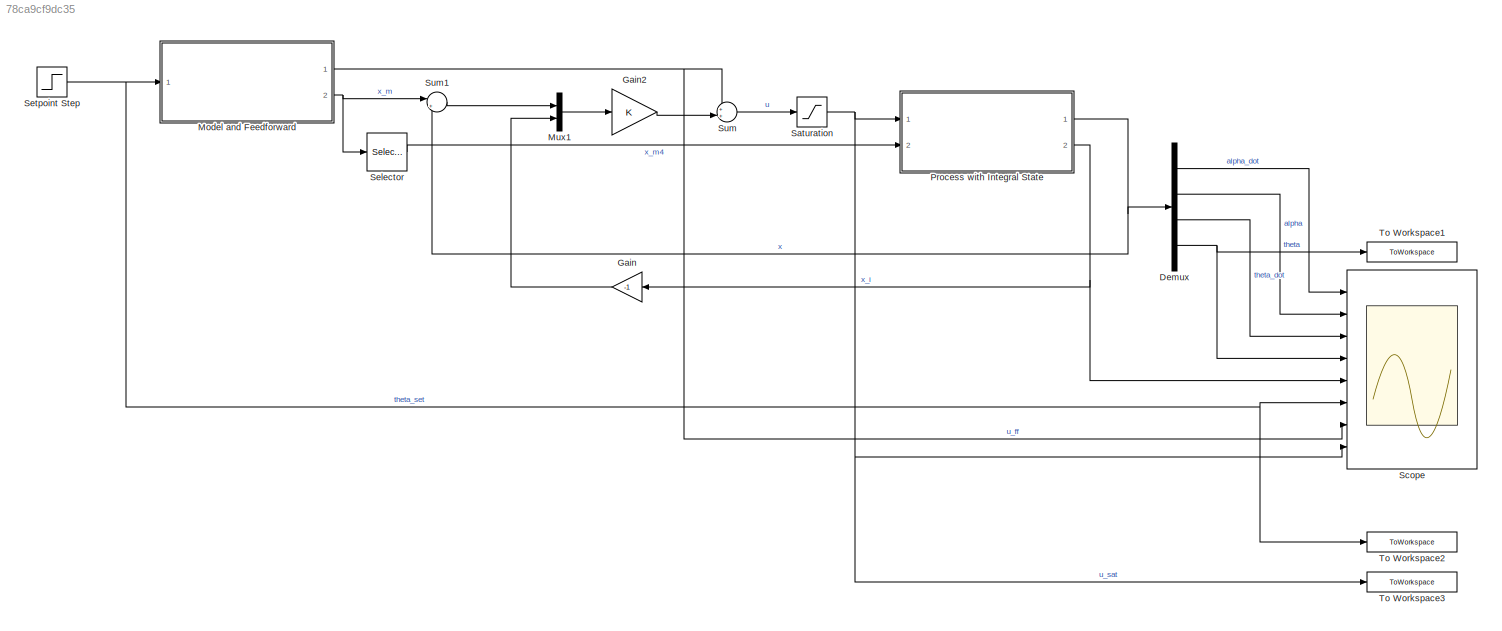
MODEL slx_78ca9cf9dc35
KIND model
CONFIG AbsTol = auto
CONFIG FixedStep = h
CONFIG MaxStep = auto
CONFIG MinStep = auto
CONFIG RelTol = 1e-3
CONFIG SampleTimeConstraint = Unconstrained
CONFIG Solver = ode14x
CONFIG SolverMode = SingleTasking
CONFIG SolverName = ode14x
CONFIG StartTime = 0.0
CONFIG StopTime = sim_time_sec
BLOCK [Demux] Demux
  Ports = [1, 4]
BLOCK [Gain] Gain
  Gain = -1
BLOCK [Gain] Gain2
  Gain = K
  Multiplication = Matrix(K*u)
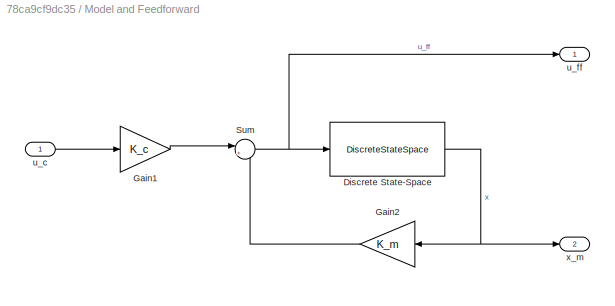
BLOCK [SubSystem] Model and Feedforward
  Ports = [1, 2]
BLOCK [DiscreteStateSpace] Model and Feedforward/Discrete State-Space
  A = Phi
  B = Gamma
  C = eye(size(Phi))
  D = zeros(size(Phi, 1), 1)
  SampleTime = -1
  StateIdentifier = {'alpha_dot', 'alpha', 'theta_dot', 'theta', 'x_i'}
BLOCK [Gain] Model and Feedforward/Gain1
  Gain = K_c
BLOCK [Gain] Model and Feedforward/Gain2
  Gain = K_m
  Multiplication = Matrix(K*u)
BLOCK [Sum] Model and Feedforward/Sum
  Inputs = |+-
  Ports = [2, 1]
BLOCK [Inport] Model and Feedforward/u_c
BLOCK [Outport] Model and Feedforward/u_ff
BLOCK [Outport] Model and Feedforward/x_m
  Port = 2
BLOCK [Mux] Mux1
  DisplayOption = bar
  Inputs = 2
  Ports = [2, 1]
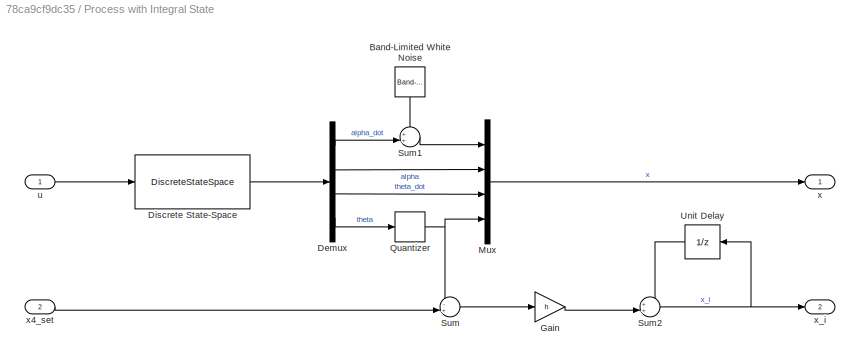
BLOCK [SubSystem] Process with Integral State
  Ports = [2, 2]
BLOCK [Reference] Process with Integral State/Band-Limited White Noise  REF=simulink/Sources/Band-Limited
White Noise
  Ports = [0, 1]
  SourceBlock = simulink/Sources/Band-Limited\nWhite Noise
  SourceType = Band-Limited White Noise.
BLOCK [Demux] Process with Integral State/Demux
  Ports = [1, 4]
BLOCK [DiscreteStateSpace] Process with Integral State/Discrete State-Space
  A = Phi
  B = Gamma
  C = eye(size(Phi))
  D = zeros(size(Phi, 1), 1)
  SampleTime = -1
  StateIdentifier = {'alpha_dot', 'alpha', 'theta_dot', 'theta', 'x_i'}
  X0 = initial_state(1:end-1)
BLOCK [Gain] Process with Integral State/Gain
  Gain = h
BLOCK [Mux] Process with Integral State/Mux
  DisplayOption = bar
  Ports = [4, 1]
BLOCK [Quantizer] Process with Integral State/Quantizer
  QuantizationInterval = deg2rad(0.5)
BLOCK [Sum] Process with Integral State/Sum
  Inputs = -+|
  Ports = [2, 1]
BLOCK [Sum] Process with Integral State/Sum1
  Inputs = ++|
  Ports = [2, 1]
BLOCK [Sum] Process with Integral State/Sum2
  Inputs = ++|
  Ports = [2, 1]
BLOCK [UnitDelay] Process with Integral State/Unit Delay
  HasFrameUpgradeWarning = on
  InitialCondition = initial_state(5)
  SampleTime = -1
BLOCK [Inport] Process with Integral State/u
BLOCK [Outport] Process with Integral State/x
BLOCK [Inport] Process with Integral State/x4_set
  Port = 2
BLOCK [Outport] Process with Integral State/x_i
  Port = 2
BLOCK [Saturate] Saturation
  LowerLimit = -9
  UpperLimit = 9
BLOCK [Scope] Scope
  Floating = off
  NumInputPorts = 8
  Ports = [8]
  ScopeSpecificationString = Simulink.scopes.TimeScopeBlockCfg('CurrentConfiguration', extmgr.ConfigurationSet(extmgr.Configuration('Core','General UI',true),extmgr.Configuration('Core','Source UI',true),extmgr.Configuration('Sources','WiredSimulink',true),extmgr.Configuration('Visuals','Time Domain',true,'SerializedDisplays',{struct('MinYLimReal','-20.81081','MaxYLimReal','25.83122','YLabelReal','','MinYLimMag','0.00000','Ma...<+1706ch>
BLOCK [Selector] Selector
  IndexOptions = Index vector (dialog)
  Indices = 4
  InputPortWidth = 4
  OutputSizes = 1
  Ports = [1, 1]
BLOCK [Step] Setpoint Step
  After = step_size_cm * cm_to_rad
  SampleTime = h
  Time = sim_time_sec / 4
BLOCK [Sum] Sum
  Inputs = ++|
  Ports = [2, 1]
BLOCK [Sum] Sum1
  Inputs = |+-
  Ports = [2, 1]
BLOCK [ToWorkspace] To Workspace1
  FixptAsFi = on
  MaxDataPoints = inf
  Ports = [1]
  SampleTime = -1
  SaveFormat = Timeseries
  VariableName = theta
BLOCK [ToWorkspace] To Workspace2
  FixptAsFi = on
  MaxDataPoints = inf
  Ports = [1]
  SampleTime = -1
  SaveFormat = Timeseries
  VariableName = theta_set
BLOCK [ToWorkspace] To Workspace3
  FixptAsFi = on
  MaxDataPoints = inf
  Ports = [1]
  SampleTime = -1
  SaveFormat = Timeseries
  VariableName = u
LINE Demux:1 -> Scope:1
LINE Demux:2 -> Scope:2
LINE Demux:3 -> Scope:3
NET Demux:4 -> Scope:4, To Workspace1:1
LINE Gain2:1 -> Sum:2
LINE Gain:1 -> Mux1:2
NET Model and Feedforward/Discrete State-Space:1 -> Model and Feedforward/Gain2:1, Model and Feedforward/x_m:1
LINE Model and Feedforward/Gain1:1 -> Model and Feedforward/Sum:1
LINE Model and Feedforward/Gain2:1 -> Model and Feedforward/Sum:2
NET Model and Feedforward/Sum:1 -> Model and Feedforward/Discrete State-Space:1, Model and Feedforward/u_ff:1
LINE Model and Feedforward/u_c:1 -> Model and Feedforward/Gain1:1
NET Model and Feedforward:1 -> Scope:7, Sum:1
NET Model and Feedforward:2 -> Selector:1, Sum1:1
LINE Mux1:1 -> Gain2:1
LINE Process with Integral State/Band-Limited White Noise:1 -> Process with Integral State/Sum1:1
LINE Process with Integral State/Demux:1 -> Process with Integral State/Sum1:2
LINE Process with Integral State/Demux:2 -> Process with Integral State/Mux:2
LINE Process with Integral State/Demux:3 -> Process with Integral State/Mux:3
LINE Process with Integral State/Demux:4 -> Process with Integral State/Quantizer:1
LINE Process with Integral State/Discrete State-Space:1 -> Process with Integral State/Demux:1
LINE Process with Integral State/Gain:1 -> Process with Integral State/Sum2:2
LINE Process with Integral State/Mux:1 -> Process with Integral State/x:1
NET Process with Integral State/Quantizer:1 -> Process with Integral State/Mux:4, Process with Integral State/Sum:1
LINE Process with Integral State/Sum1:1 -> Process with Integral State/Mux:1
NET Process with Integral State/Sum2:1 -> Process with Integral State/Unit Delay:1, Process with Integral State/x_i:1
LINE Process with Integral State/Sum:1 -> Process with Integral State/Gain:1
LINE Process with Integral State/Unit Delay:1 -> Process with Integral State/Sum2:1
LINE Process with Integral State/u:1 -> Process with Integral State/Discrete State-Space:1
LINE Process with Integral State/x4_set:1 -> Process with Integral State/Sum:2
NET Process with Integral State:1 -> Demux:1, Sum1:2
NET Process with Integral State:2 -> Gain:1, Scope:5
NET Saturation:1 -> Process with Integral State:1, Scope:8, To Workspace3:1
LINE Selector:1 -> Process with Integral State:2
NET Setpoint Step:1 -> Model and Feedforward:1, Scope:6, To Workspace2:1
LINE Sum1:1 -> Mux1:1
LINE Sum:1 -> Saturation:1
note: NET lines group one-source signal fan-out (src -> all destinations, sorted); 1:1 wires keep LINE
